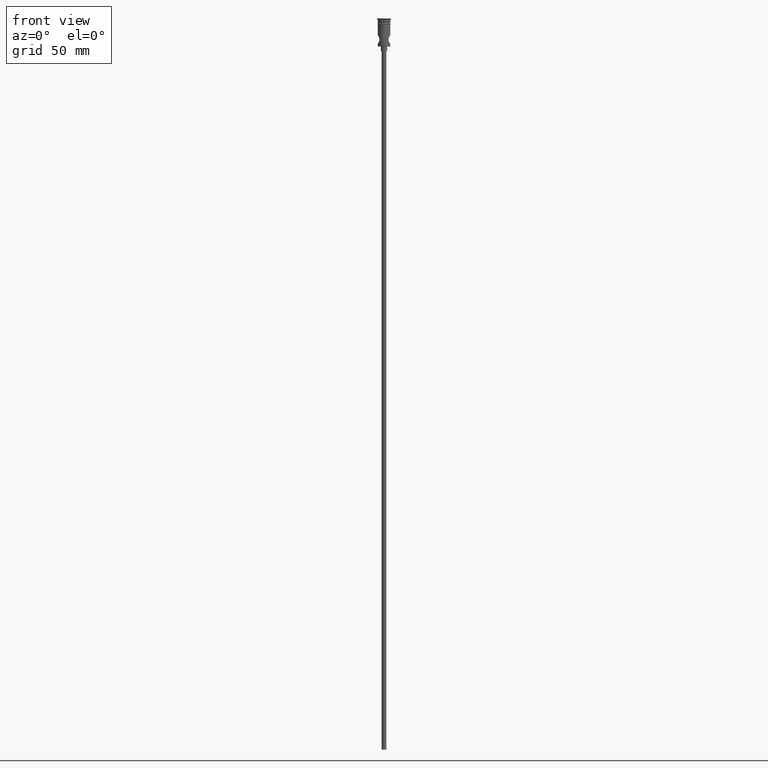
[diagram: clean part render]
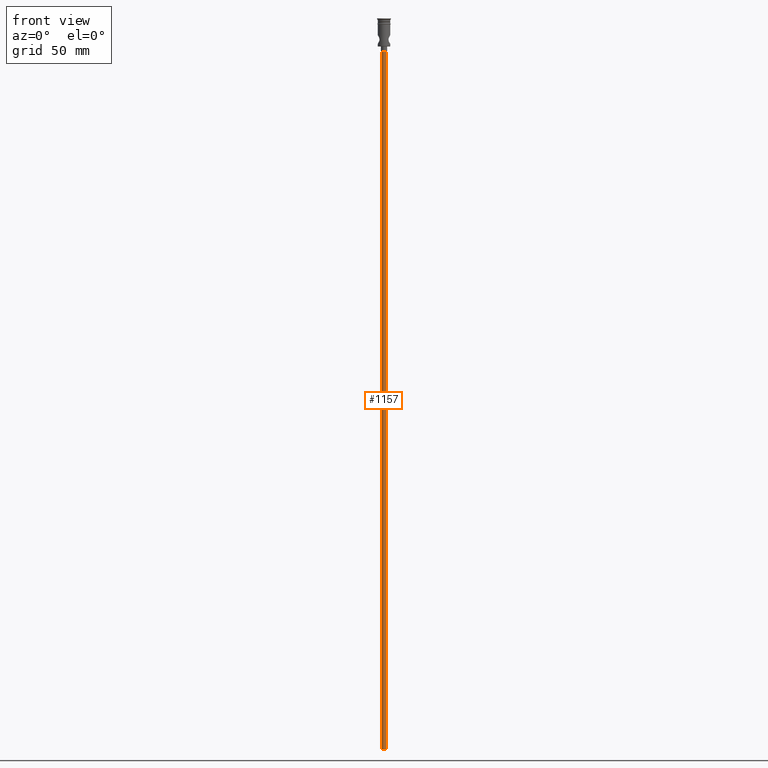
[diagram: same view with one face highlighted and labeled with its STEP entity id]
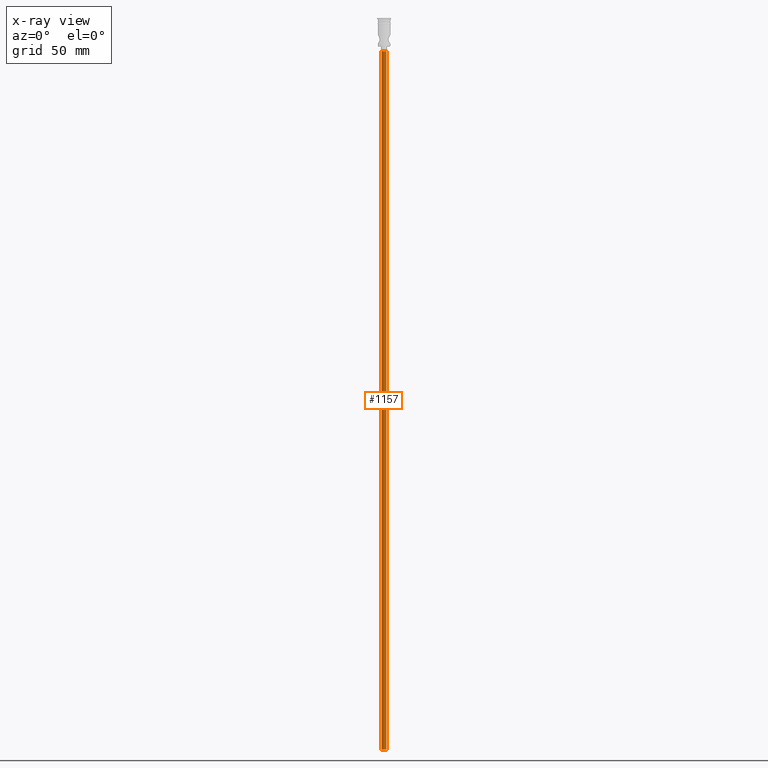
[diagram: x-ray of the same camera — body ghosted, the highlighted face saturated]
A machine part, front view. The second image highlights one B-rep face of the part: STEP entity #1157.
The next image is the same camera in x-ray: the body ghosted, the highlighted face saturated — about 0% of this face is hidden behind the body in this view.
In plain terms, the highlighted cylindrical surface (edge-blend (fillet) strip) has radius 1.5 mm, axis along (-0, -0, 1).
Its self-contained STEP definition (entity closure, byte-faithful):
#50 = CARTESIAN_POINT ( 'NONE',  ( 0.000000000000000000, 0.000000000000000000, -468.0000000000000000 ) ) ;
#52 = CARTESIAN_POINT ( 'NONE',  ( 1.500000000000000222, 0.000000000000000000, -468.0000000000000000 ) ) ;
#171 = CIRCLE ( 'NONE', #352, 1.500000000000000222 ) ;
#186 = LINE ( 'NONE', #1160, #921 ) ;
#189 = CARTESIAN_POINT ( 'NONE',  ( 0.000000000000000000, 0.000000000000000000, -20.99999999999999645 ) ) ;
#195 = CARTESIAN_POINT ( 'NONE',  ( 1.500000000000000222, 0.000000000000000000, -468.0000000000000000 ) ) ;
#214 = DIRECTION ( 'NONE',  ( -1.000000000000000000, 0.000000000000000000, 0.000000000000000000 ) ) ;
#248 = DIRECTION ( 'NONE',  ( -0.000000000000000000, -0.000000000000000000, 1.000000000000000000 ) ) ;
#352 = AXIS2_PLACEMENT_3D ( 'NONE', #1280, #730, #1302 ) ;
#364 = DIRECTION ( 'NONE',  ( 1.000000000000000000, 0.000000000000000000, 0.000000000000000000 ) ) ;
#381 = VERTEX_POINT ( 'NONE', #52 ) ;
#417 = EDGE_LOOP ( 'NONE', ( #1283, #1297, #849, #594 ) ) ;
#422 = VECTOR ( 'NONE', #856, 1000.000000000000000 ) ;
#436 = EDGE_CURVE ( 'NONE', #381, #1394, #586, .T. ) ;
#438 = CARTESIAN_POINT ( 'NONE',  ( 1.500000000000000222, 0.000000000000000000, -20.99999999999999645 ) ) ;
#457 = CYLINDRICAL_SURFACE ( 'NONE', #1190, 1.500000000000000222 ) ;
#466 = AXIS2_PLACEMENT_3D ( 'NONE', #189, #627, #214 ) ;
#586 = LINE ( 'NONE', #195, #422 ) ;
#594 = ORIENTED_EDGE ( 'NONE', *, *, #628, .T. ) ;
#627 = DIRECTION ( 'NONE',  ( 0.000000000000000000, 0.000000000000000000, -1.000000000000000000 ) ) ;
#628 = EDGE_CURVE ( 'NONE', #1394, #738, #1425, .T. ) ;
#635 = CARTESIAN_POINT ( 'NONE',  ( -1.500000000000000222, 1.836970198721030181E-16, -20.99999999999999645 ) ) ;
#730 = DIRECTION ( 'NONE',  ( 0.000000000000000000, 0.000000000000000000, -1.000000000000000000 ) ) ;
#738 = VERTEX_POINT ( 'NONE', #635 ) ;
#814 = FACE_OUTER_BOUND ( 'NONE', #417, .T. ) ;
#849 = ORIENTED_EDGE ( 'NONE', *, *, #436, .T. ) ;
#856 = DIRECTION ( 'NONE',  ( -0.000000000000000000, -0.000000000000000000, 1.000000000000000000 ) ) ;
#921 = VECTOR ( 'NONE', #1060, 1000.000000000000000 ) ;
#1060 = DIRECTION ( 'NONE',  ( -0.000000000000000000, -0.000000000000000000, 1.000000000000000000 ) ) ;
#1157 = ADVANCED_FACE ( 'NONE', ( #814 ), #457, .T. ) ;
#1160 = CARTESIAN_POINT ( 'NONE',  ( -1.500000000000000222, 1.836970198721030181E-16, -468.0000000000000000 ) ) ;
#1190 = AXIS2_PLACEMENT_3D ( 'NONE', #50, #248, #364 ) ;
#1219 = EDGE_CURVE ( 'NONE', #1372, #738, #186, .T. ) ;
#1280 = CARTESIAN_POINT ( 'NONE',  ( 0.000000000000000000, 0.000000000000000000, -468.0000000000000000 ) ) ;
#1283 = ORIENTED_EDGE ( 'NONE', *, *, #1219, .F. ) ;
#1287 = EDGE_CURVE ( 'NONE', #381, #1372, #171, .T. ) ;
#1297 = ORIENTED_EDGE ( 'NONE', *, *, #1287, .F. ) ;
#1302 = DIRECTION ( 'NONE',  ( -1.000000000000000000, 0.000000000000000000, 0.000000000000000000 ) ) ;
#1372 = VERTEX_POINT ( 'NONE', #1419 ) ;
#1394 = VERTEX_POINT ( 'NONE', #438 ) ;
#1419 = CARTESIAN_POINT ( 'NONE',  ( -1.500000000000000222, 1.836970198721030181E-16, -468.0000000000000000 ) ) ;
#1425 = CIRCLE ( 'NONE', #466, 1.500000000000000222 ) ;